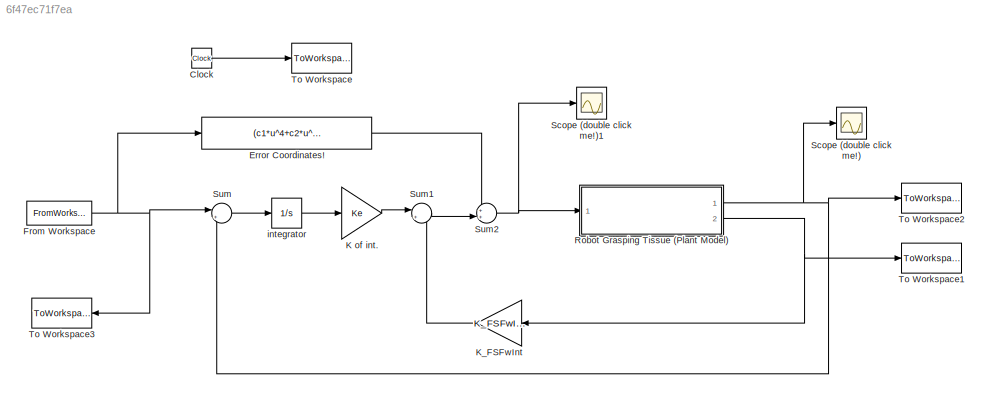
MODEL slx_6f47ec71f7ea
KIND model
CONFIG AbsTol = auto
CONFIG EnableMultiTasking = off
CONFIG FixedStep = .000001
CONFIG MaxStep = auto
CONFIG MinStep = auto
CONFIG RelTol = 1e-3
CONFIG SampleTimeConstraint = Unconstrained
CONFIG Solver = ode45
CONFIG SolverName = ode45
CONFIG StartTime = 0.0
CONFIG StopTime = tend
BLOCK [Clock] Clock
  DisplayTime = on
BLOCK [Fcn] Error Coordinates!
  Expr = (c1*u^4+c2*u^3+c3*u^2)*a/KtKm
  NameLocation = top
BLOCK [FromWorkspace] From Workspace
  VariableName = input
BLOCK [Gain] K of int.
  Gain = Ke
  Multiplication = Matrix(K*u)
BLOCK [Gain] K_FSFwInt
  Gain = K_FSFwInt
  Multiplication = Matrix(K*u)
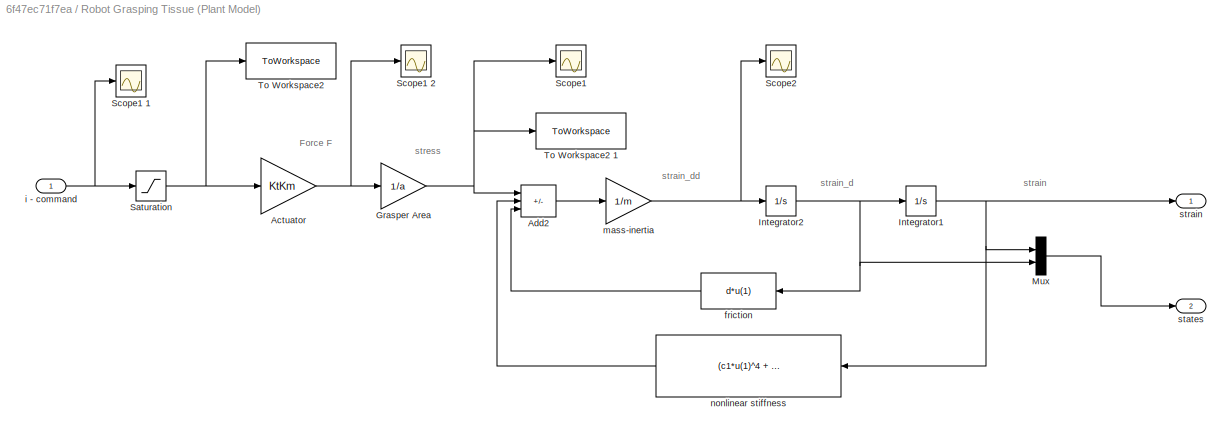
BLOCK [SubSystem] Robot Grasping Tissue (Plant Model) 
  Ports = [1, 2]
  RequestExecContextInheritance = off
BLOCK [Gain] Robot Grasping Tissue (Plant Model) /Actuator
  Gain = KtKm
BLOCK [Sum] Robot Grasping Tissue (Plant Model) /Add2
  IconShape = rectangular
  Inputs = +--
  Ports = [3, 1]
BLOCK [Gain] Robot Grasping Tissue (Plant Model) /Grasper Area
  Gain = 1/a
BLOCK [Integrator] Robot Grasping Tissue (Plant Model) /Integrator1
  InitialCondition = .00001
  Ports = [1, 1]
BLOCK [Integrator] Robot Grasping Tissue (Plant Model) /Integrator2
  InitialCondition = 0.000001
  Ports = [1, 1]
BLOCK [Mux] Robot Grasping Tissue (Plant Model) /Mux
  DisplayOption = bar
  Inputs = 2
  Ports = [2, 1]
BLOCK [Saturate] Robot Grasping Tissue (Plant Model) /Saturation
  LowerLimit = -i_MAX
  UpperLimit = i_MAX
BLOCK [Scope] Robot Grasping Tissue (Plant Model) /Scope1 
  Floating = off
  NumInputPorts = 1
  Ports = [1]
  ScopeSpecificationString = Simulink.scopes.TimeScopeBlockCfg('CurrentConfiguration', extmgr.ConfigurationSet(extmgr.Configuration('Core','General UI',true),extmgr.Configuration('Core','Source UI',true),extmgr.Configuration('Sources','WiredSimulink',true,'DataLoggingLimitDataPoints',true,'DataLoggingSaveFormat','Array','DataLoggingDecimation','1','DataLoggingDecimateData',true),extmgr.Configuration('Visuals','Time Domain',tr...<+1640ch>
BLOCK [Scope] Robot Grasping Tissue (Plant Model) /Scope1 1
  Floating = off
  NumInputPorts = 1
  Ports = [1]
  ScopeSpecificationString = Simulink.scopes.TimeScopeBlockCfg('CurrentConfiguration', extmgr.ConfigurationSet(extmgr.Configuration('Core','General UI',true),extmgr.Configuration('Core','Source UI',true),extmgr.Configuration('Sources','WiredSimulink',true,'DataLoggingVariableName','ScopeData1','DataLoggingLimitDataPoints',true,'DataLoggingSaveFormat','Array','DataLoggingDecimation','1','DataLoggingDecimateData',true),extmgr.C...<+917ch>
BLOCK [Scope] Robot Grasping Tissue (Plant Model) /Scope1 2
  Floating = off
  NumInputPorts = 1
  Ports = [1]
  ScopeSpecificationString = Simulink.scopes.TimeScopeBlockCfg('CurrentConfiguration', extmgr.ConfigurationSet(extmgr.Configuration('Core','General UI',true),extmgr.Configuration('Core','Source UI',true),extmgr.Configuration('Sources','WiredSimulink',true,'DataLoggingVariableName','ScopeData2','DataLoggingLimitDataPoints',true,'DataLoggingSaveFormat','Array','DataLoggingDecimation','1','DataLoggingDecimateData',true),extmgr.C...<+917ch>
BLOCK [Scope] Robot Grasping Tissue (Plant Model) /Scope2
  Floating = off
  NumInputPorts = 1
  Ports = [1]
  ScopeSpecificationString = Simulink.scopes.TimeScopeBlockCfg('CurrentConfiguration', extmgr.ConfigurationSet(extmgr.Configuration('Core','General UI',true),extmgr.Configuration('Core','Source UI',true),extmgr.Configuration('Sources','WiredSimulink',true,'DataLoggingLimitDataPoints',true,'DataLoggingSaveFormat','Array','DataLoggingDecimation','1','DataLoggingDecimateData',true),extmgr.Configuration('Visuals','Time Domain',tr...<+878ch>
BLOCK [ToWorkspace] Robot Grasping Tissue (Plant Model) /To Workspace2 
  MaxDataPoints = inf
  Ports = [1]
  SampleTime = -1
  VariableName = plantInput
BLOCK [ToWorkspace] Robot Grasping Tissue (Plant Model) /To Workspace2 1
  MaxDataPoints = inf
  Ports = [1]
  SampleTime = -1
  VariableName = stressApplied
BLOCK [Fcn] Robot Grasping Tissue (Plant Model) /friction
  Expr = d*u(1)
BLOCK [Inport] Robot Grasping Tissue (Plant Model) /i  - command
BLOCK [Gain] Robot Grasping Tissue (Plant Model) /mass-inertia 
  Gain = 1/m
BLOCK [Fcn] Robot Grasping Tissue (Plant Model) /nonlinear stiffness 
  Expr = (c1*u(1)^4 + c2*u(1)^3 + c3*u(1)^2)
BLOCK [Outport] Robot Grasping Tissue (Plant Model) /states
  Port = 2
  VectorParamsAs1DForOutWhenUnconnected = off
BLOCK [Outport] Robot Grasping Tissue (Plant Model) /strain 
  VectorParamsAs1DForOutWhenUnconnected = off
BLOCK [Scope] Scope (double click me!)
  Floating = off
  NumInputPorts = 1
  Ports = [1]
  ScopeSpecificationString = Simulink.scopes.TimeScopeBlockCfg('CurrentConfiguration', extmgr.ConfigurationSet(extmgr.Configuration('Core','General UI',true),extmgr.Configuration('Core','Source UI',true),extmgr.Configuration('Sources','WiredSimulink',true,'DataLoggingLimitDataPoints',true,'DataLoggingSaveFormat','Array','DataLoggingDecimation','1','DataLoggingDecimateData',true),extmgr.Configuration('Visuals','Time Domain',tr...<+878ch>
BLOCK [Scope] Scope (double click me!)1
  Floating = off
  NumInputPorts = 1
  Ports = [1]
  ScopeSpecificationString = Simulink.scopes.TimeScopeBlockCfg('CurrentConfiguration', extmgr.ConfigurationSet(extmgr.Configuration('Core','General UI',true),extmgr.Configuration('Core','Source UI',true),extmgr.Configuration('Sources','WiredSimulink',true,'DataLoggingVariableName','ScopeData3','DataLoggingLimitDataPoints',true,'DataLoggingSaveFormat','Array','DataLoggingDecimation','1','DataLoggingDecimateData',true),extmgr.C...<+1677ch>
BLOCK [Sum] Sum
  Inputs = |+-
  Ports = [2, 1]
BLOCK [Sum] Sum1
  Inputs = |+-
  Ports = [2, 1]
BLOCK [Sum] Sum2
  Inputs = ++|
  NameLocation = top
  Ports = [2, 1]
BLOCK [ToWorkspace] To Workspace
  MaxDataPoints = inf
  Ports = [1]
  SampleTime = -1
  VariableName = t
BLOCK [ToWorkspace] To Workspace1
  MaxDataPoints = inf
  Ports = [1]
  SampleTime = -1
  VariableName = states
BLOCK [ToWorkspace] To Workspace2
  MaxDataPoints = inf
  Ports = [1]
  SampleTime = -1
  VariableName = y
BLOCK [ToWorkspace] To Workspace3
  MaxDataPoints = inf
  Ports = [1]
  SampleTime = -1
  VariableName = command
BLOCK [Integrator] integrator
  Ports = [1, 1]
ANNOTATION Robot Grasping Tissue (Plant Model) : Force F
ANNOTATION Robot Grasping Tissue (Plant Model) : strain
ANNOTATION Robot Grasping Tissue (Plant Model) : strain_d
ANNOTATION Robot Grasping Tissue (Plant Model) : strain_dd
ANNOTATION Robot Grasping Tissue (Plant Model) : stress
LINE Clock:1 -> To Workspace:1
LINE Error Coordinates!:1 -> Sum2:1
NET From Workspace:1 -> Error Coordinates!:1, Sum:1, To Workspace3:1
LINE K of int.:1 -> Sum1:1
LINE K_FSFwInt:1 -> Sum1:2
NET Robot Grasping Tissue (Plant Model) /Actuator:1 -> Robot Grasping Tissue (Plant Model) /Grasper Area:1, Robot Grasping Tissue (Plant Model) /Scope1 2:1
LINE Robot Grasping Tissue (Plant Model) /Add2:1 -> Robot Grasping Tissue (Plant Model) /mass-inertia :1
NET Robot Grasping Tissue (Plant Model) /Grasper Area:1 -> Robot Grasping Tissue (Plant Model) /Add2:1, Robot Grasping Tissue (Plant Model) /Scope1 :1, Robot Grasping Tissue (Plant Model) /To Workspace2 1:1
NET Robot Grasping Tissue (Plant Model) /Integrator1:1 -> Robot Grasping Tissue (Plant Model) /Mux:1, Robot Grasping Tissue (Plant Model) /nonlinear stiffness :1, Robot Grasping Tissue (Plant Model) /strain :1
NET Robot Grasping Tissue (Plant Model) /Integrator2:1 -> Robot Grasping Tissue (Plant Model) /Integrator1:1, Robot Grasping Tissue (Plant Model) /Mux:2, Robot Grasping Tissue (Plant Model) /friction:1
LINE Robot Grasping Tissue (Plant Model) /Mux:1 -> Robot Grasping Tissue (Plant Model) /states:1
NET Robot Grasping Tissue (Plant Model) /Saturation:1 -> Robot Grasping Tissue (Plant Model) /Actuator:1, Robot Grasping Tissue (Plant Model) /To Workspace2 :1
LINE Robot Grasping Tissue (Plant Model) /friction:1 -> Robot Grasping Tissue (Plant Model) /Add2:3
NET Robot Grasping Tissue (Plant Model) /i  - command:1 -> Robot Grasping Tissue (Plant Model) /Saturation:1, Robot Grasping Tissue (Plant Model) /Scope1 1:1
NET Robot Grasping Tissue (Plant Model) /mass-inertia :1 -> Robot Grasping Tissue (Plant Model) /Integrator2:1, Robot Grasping Tissue (Plant Model) /Scope2:1
LINE Robot Grasping Tissue (Plant Model) /nonlinear stiffness :1 -> Robot Grasping Tissue (Plant Model) /Add2:2
NET Robot Grasping Tissue (Plant Model) :1 -> Scope (double click me!):1, Sum:2, To Workspace2:1
NET Robot Grasping Tissue (Plant Model) :2 -> K_FSFwInt:1, To Workspace1:1
LINE Sum1:1 -> Sum2:2
NET Sum2:1 -> Robot Grasping Tissue (Plant Model) :1, Scope (double click me!)1:1
LINE Sum:1 -> integrator:1
LINE integrator:1 -> K of int.:1
note: NET lines group one-source signal fan-out (src -> all destinations, sorted); 1:1 wires keep LINE
